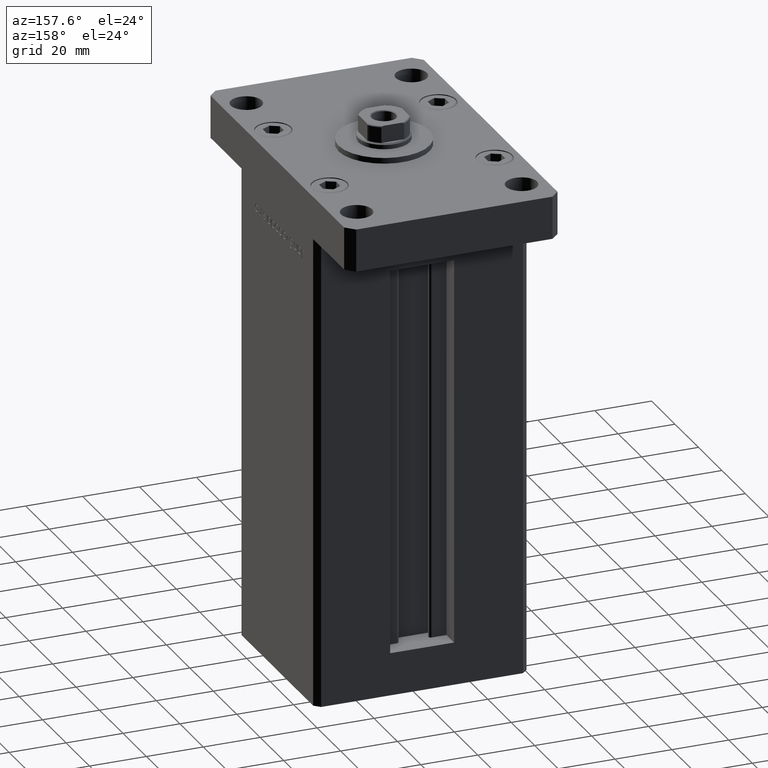
[diagram: clean part render]
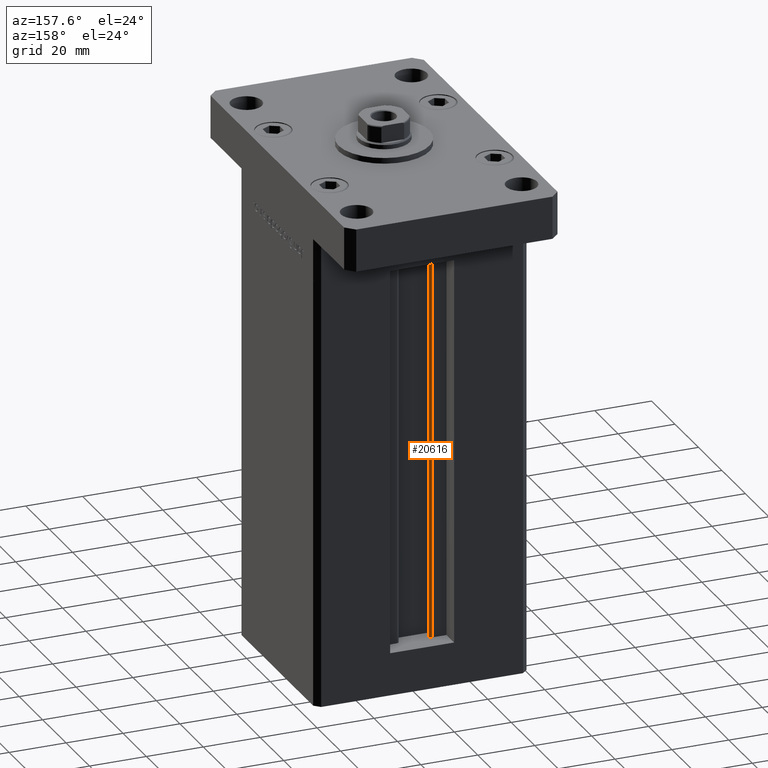
[diagram: same view with one face highlighted and labeled with its STEP entity id]
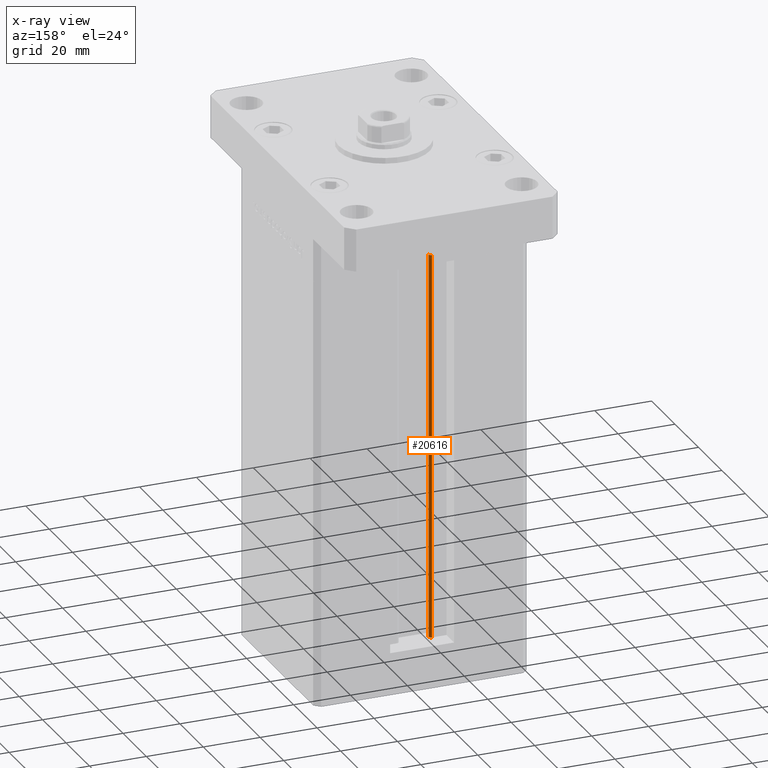
[diagram: x-ray of the same camera — body ghosted, the highlighted face saturated]
A machine part, auxiliary view. The second image highlights one B-rep face of the part: STEP entity #20616.
The next image is the same camera in x-ray: the body ghosted, the highlighted face saturated — about 1% of this face is hidden behind the body in this view.
In plain terms, the highlighted cylindrical surface (edge-blend (fillet) strip) has radius 0.9333 mm, axis along (0, 0, 1).
Its self-contained STEP definition (entity closure, byte-faithful):
#1744 = ORIENTED_EDGE ( 'NONE', *, *, #12377, .F. ) ;
#3000 = ORIENTED_EDGE ( 'NONE', *, *, #35568, .F. ) ;
#6521 = VECTOR ( 'NONE', #40142, 1000.000000000000000 ) ;
#6800 = CARTESIAN_POINT ( 'NONE',  ( -6.183333333334001480, 25.99999999999999289, 0.000000000000000000 ) ) ;
#12377 = EDGE_CURVE ( 'NONE', #53211, #27048, #48802, .T. ) ;
#13435 = AXIS2_PLACEMENT_3D ( 'NONE', #14958, #44504, #35828 ) ;
#14958 = CARTESIAN_POINT ( 'NONE',  ( -6.183333333334001480, 25.06666666666599141, 0.000000000000000000 ) ) ;
#18206 = VECTOR ( 'NONE', #37456, 1000.000000000000000 ) ;
#18419 = DIRECTION ( 'NONE',  ( 1.000000000000000000, 0.000000000000000000, 0.000000000000000000 ) ) ;
#19034 = CYLINDRICAL_SURFACE ( 'NONE', #13435, 0.9333333333340008142 ) ;
#20616 = ADVANCED_FACE ( 'NONE', ( #27697 ), #19034, .T. ) ;
#20912 = LINE ( 'NONE', #24723, #18206 ) ;
#23350 = VERTEX_POINT ( 'NONE', #34244 ) ;
#24723 = CARTESIAN_POINT ( 'NONE',  ( -5.250000000000000000, 25.06666666666599141, 0.000000000000000000 ) ) ;
#24798 = CARTESIAN_POINT ( 'NONE',  ( -5.250000000000000000, 25.06666666666599141, 0.000000000000000000 ) ) ;
#27048 = VERTEX_POINT ( 'NONE', #24798 ) ;
#27221 = AXIS2_PLACEMENT_3D ( 'NONE', #29776, #37109, #49599 ) ;
#27697 = FACE_OUTER_BOUND ( 'NONE', #33145, .T. ) ;
#29776 = CARTESIAN_POINT ( 'NONE',  ( -6.183333333334001480, 25.06666666666599141, 136.0000000000000000 ) ) ;
#31744 = CARTESIAN_POINT ( 'NONE',  ( -6.183333333334001480, 25.99999999999999289, 136.0000000000000000 ) ) ;
#32419 = CIRCLE ( 'NONE', #27221, 0.9333333333340008142 ) ;
#33145 = EDGE_LOOP ( 'NONE', ( #3000, #1744, #50821, #38666 ) ) ;
#34244 = CARTESIAN_POINT ( 'NONE',  ( -5.250000000000000000, 25.06666666666599141, 136.0000000000000000 ) ) ;
#35018 = LINE ( 'NONE', #51554, #6521 ) ;
#35568 = EDGE_CURVE ( 'NONE', #27048, #23350, #20912, .T. ) ;
#35828 = DIRECTION ( 'NONE',  ( 1.000000000000000000, 0.000000000000000000, 0.000000000000000000 ) ) ;
#37109 = DIRECTION ( 'NONE',  ( 0.000000000000000000, 0.000000000000000000, -1.000000000000000000 ) ) ;
#37456 = DIRECTION ( 'NONE',  ( -0.000000000000000000, -0.000000000000000000, 1.000000000000000000 ) ) ;
#38666 = ORIENTED_EDGE ( 'NONE', *, *, #44924, .T. ) ;
#40142 = DIRECTION ( 'NONE',  ( -0.000000000000000000, -0.000000000000000000, 1.000000000000000000 ) ) ;
#41031 = AXIS2_PLACEMENT_3D ( 'NONE', #42832, #47172, #18419 ) ;
#42832 = CARTESIAN_POINT ( 'NONE',  ( -6.183333333334001480, 25.06666666666599141, 0.000000000000000000 ) ) ;
#44504 = DIRECTION ( 'NONE',  ( -0.000000000000000000, -0.000000000000000000, 1.000000000000000000 ) ) ;
#44924 = EDGE_CURVE ( 'NONE', #51068, #23350, #32419, .T. ) ;
#47172 = DIRECTION ( 'NONE',  ( -0.000000000000000000, -0.000000000000000000, -1.000000000000000000 ) ) ;
#47897 = EDGE_CURVE ( 'NONE', #53211, #51068, #35018, .T. ) ;
#48802 = CIRCLE ( 'NONE', #41031, 0.9333333333340008142 ) ;
#49599 = DIRECTION ( 'NONE',  ( 1.000000000000000000, 0.000000000000000000, 0.000000000000000000 ) ) ;
#50821 = ORIENTED_EDGE ( 'NONE', *, *, #47897, .T. ) ;
#51068 = VERTEX_POINT ( 'NONE', #31744 ) ;
#51554 = CARTESIAN_POINT ( 'NONE',  ( -6.183333333334001480, 25.99999999999999289, 0.000000000000000000 ) ) ;
#53211 = VERTEX_POINT ( 'NONE', #6800 ) ;